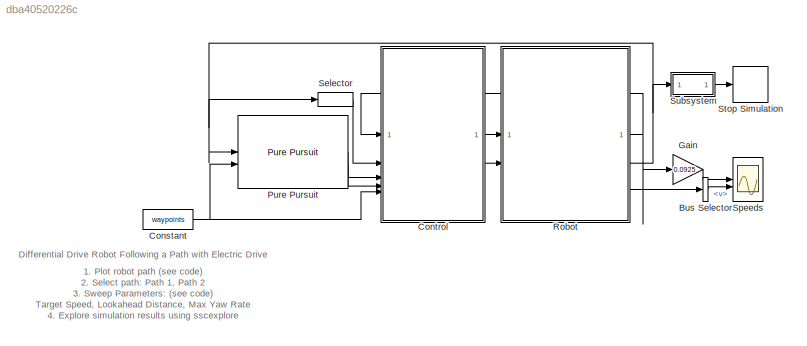
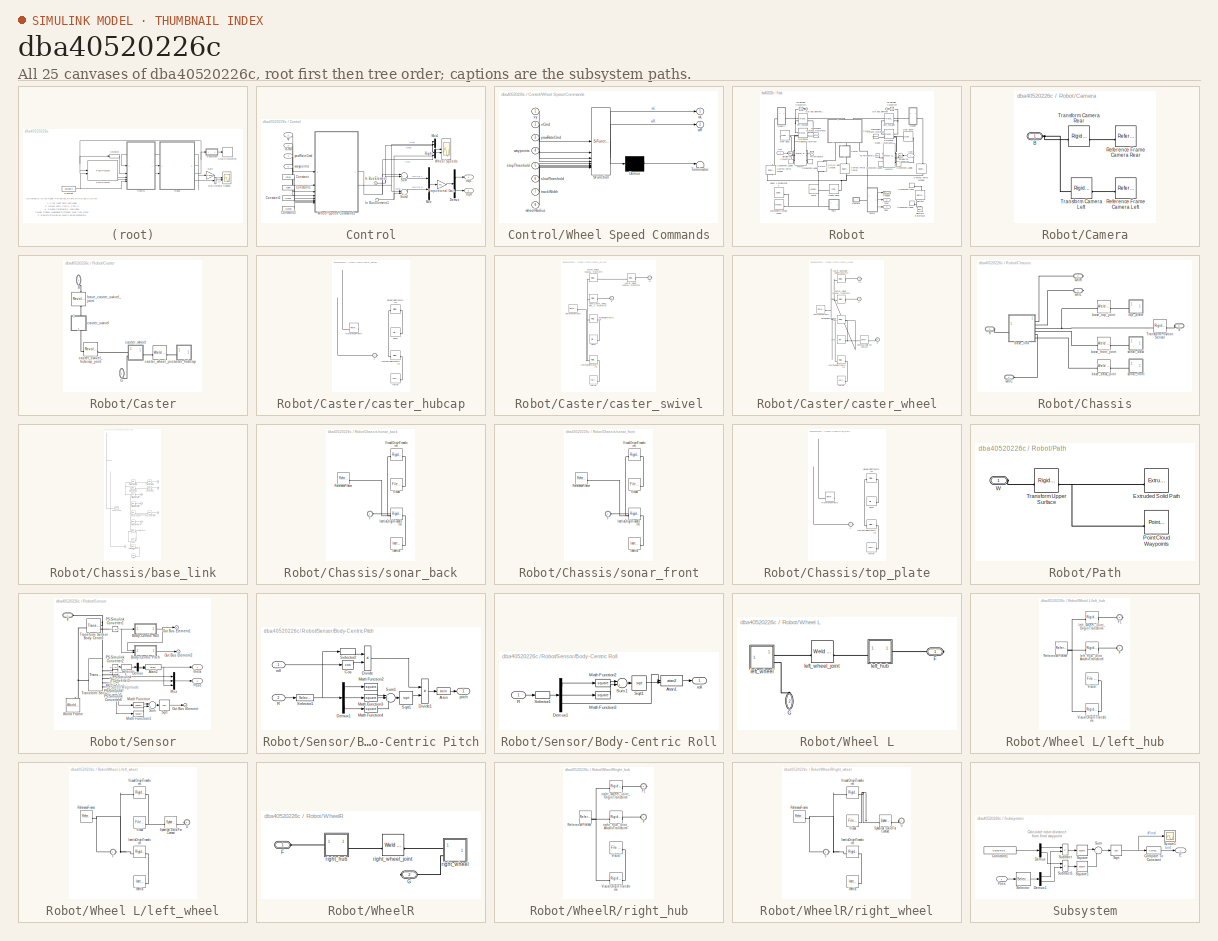
[diagram: thumbnail index - all 25 canvases of the model, root first then tree order]
MODEL slx_dba40520226c
KIND model
CONFIG AbsTol = 1e-4
CONFIG EnableMultiTasking = off
CONFIG FixedStep = auto
CONFIG MaxStep = auto
CONFIG MinStep = auto
CONFIG PostLoadFcn = waypoints = [0 0; 4 2; 3 7; -3 6]; \ntarget_vel = 0.5;\nlookahead_d = 2;\nmax_yaw_rate = 1;
CONFIG RelTol = 1e-3
CONFIG SampleTimeConstraint = Unconstrained
CONFIG SolverName = ode23t
CONFIG StartTime = 0.0
CONFIG StopFcn = %robotPoses = out.yout{1}.Values.Data;\n\n%figure(99);\n%plot(waypoints(:,1), waypoints(:,2), 'k-x');\n%hold all\n%plot(robotPoses(:,1), robotPoses(:,2));\n%title('XY Waypoint Tracking');\n
CONFIG StopTime = 35
BLOCK [BusSelector] Bus Selector
  OutputSignals = v
BLOCK [Constant] Constant
  Value = waypoints
BLOCK [SubSystem] Control
BLOCK [Constant] Control/Constant
  Value = xStop
BLOCK [Constant] Control/Constant1
  Value = xSlow
BLOCK [Constant] Control/Constant2
  Value = xTrack
BLOCK [Constant] Control/Constant3
  Value = rWheel
BLOCK [Demux] Control/Demux
  Outputs = 2
BLOCK [Inport] Control/In Bus Element
BLOCK [Inport] Control/In Bus Element1
BLOCK [Mux] Control/Mux
  DisplayOption = bar
  Inputs = 2
BLOCK [Mux] Control/Mux1
  DisplayOption = bar
  Inputs = 2
BLOCK [Gain] Control/Proportional Gain
  Gain = kp
BLOCK [Mux] Control/Right
  DisplayOption = bar
  Inputs = 2
BLOCK [Sum] Control/Sum
  Inputs = |+-
BLOCK [Sum] Control/Sum2
  Inputs = |+-
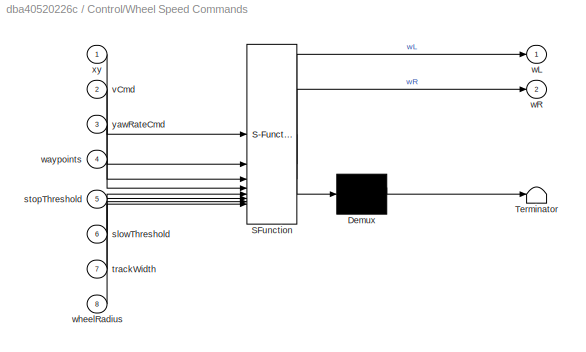
BLOCK [SubSystem] Control/Wheel Speed Commands
  ErrorFcn = Stateflow.Translate.translate
  PermitHierarchicalResolution = ExplicitOnly
  SFBlockType = MATLAB Function
  TreatAsAtomicUnit = on
BLOCK [Demux] Control/Wheel Speed Commands/ Demux 
  Outputs = 1
BLOCK [S-Function] Control/Wheel Speed Commands/ SFunction 
  EnableBusSupport = off
  FunctionName = sf_sfun
  PortCounts = [8 3]
  SFcnIsStateOwnerBlock = off
  SFunctionDeploymentMode = off
  Tag = Stateflow S-Function 2
BLOCK [Terminator] Control/Wheel Speed Commands/ Terminator 
BLOCK [Inport] Control/Wheel Speed Commands/slowThreshold
  Port = 6
BLOCK [Inport] Control/Wheel Speed Commands/stopThreshold
  Port = 5
BLOCK [Inport] Control/Wheel Speed Commands/trackWidth
  Port = 7
BLOCK [Inport] Control/Wheel Speed Commands/vCmd
  Port = 2
BLOCK [Outport] Control/Wheel Speed Commands/wL
BLOCK [Outport] Control/Wheel Speed Commands/wR
  Port = 2
BLOCK [Inport] Control/Wheel Speed Commands/waypoints
  Port = 4
BLOCK [Inport] Control/Wheel Speed Commands/wheelRadius
  Port = 8
BLOCK [Inport] Control/Wheel Speed Commands/xy
BLOCK [Inport] Control/Wheel Speed Commands/yawRateCmd
  Port = 3
BLOCK [Scope] Control/Wheel Speeds
  Floating = off
  NumInputPorts = 2
  ScopeSpecificationString = Simulink.scopes.TimeScopeBlockCfg('CurrentConfiguration', extmgr.ConfigurationSet(extmgr.Configuration('Core','General UI',true),extmgr.Configuration('Core','Source UI',true),extmgr.Configuration('Sources','WiredSimulink',true,'DataLoggingVariableName','ScopeData2'),extmgr.Configuration('Visuals','Time Domain',true,'SerializedDisplays',{struct('MinYLimReal','-0.70389','MaxYLimReal','6.33498','YLab...<+1963ch>
BLOCK [Outport] Control/trqL
BLOCK [Outport] Control/trqR
  Port = 2
BLOCK [Inport] Control/vCmd
  Port = 3
BLOCK [Inport] Control/waypoints
  Port = 5
BLOCK [Inport] Control/xy
  Port = 2
BLOCK [Inport] Control/yawRateCmd
  Port = 4
BLOCK [Gain] Gain
  Gain = 0.0925
  NameLocation = top
BLOCK [Reference] Pure Pursuit  REF=robotalgslib/Pure Pursuit
  SourceBlock = robotalgslib/Pure Pursuit
  SourceType = nav.slalgs.internal.PurePursuit
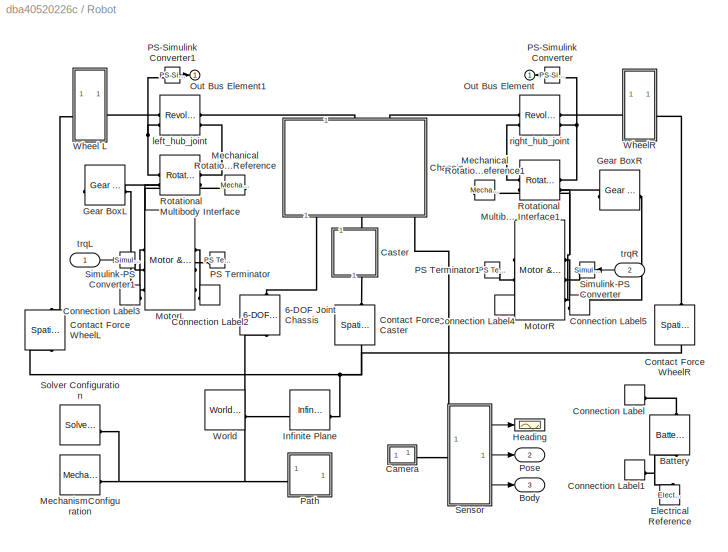
BLOCK [SubSystem] Robot
BLOCK [Reference] Robot/6-DOF Joint Chassis  REF=sm_lib/Joints/6-DOF Joint
  NameLocation = right
  SourceBlock = sm_lib/Joints/6-DOF Joint
  SourceType = 6-DOF Joint
BLOCK [Reference] Robot/Battery  REF=batteryecm_lib/Battery
  NameLocation = left
  SourceBlock = batteryecm_lib/Battery
  SourceType = Battery
BLOCK [Outport] Robot/Body
  Port = 3
BLOCK [SubSystem] Robot/Camera
BLOCK [PMIOPort] Robot/Camera/B
  Side = Left
BLOCK [Reference] Robot/Camera/Reference Frame Camera Left  REF=sm_lib/Frames and
Transforms/Reference
Frame
  SourceBlock = sm_lib/Frames and\nTransforms/Reference\nFrame
  SourceType = Reference\nFrame
BLOCK [Reference] Robot/Camera/Reference Frame Camera Rear  REF=sm_lib/Frames and
Transforms/Reference
Frame
  SourceBlock = sm_lib/Frames and\nTransforms/Reference\nFrame
  SourceType = Reference\nFrame
BLOCK [Reference] Robot/Camera/Transform Camera Left  REF=sm_lib/Frames and
Transforms/Rigid
Transform
  SourceBlock = sm_lib/Frames and\nTransforms/Rigid\nTransform
  SourceType = Rigid\nTransform
BLOCK [Reference] Robot/Camera/Transform Camera Rear  REF=sm_lib/Frames and
Transforms/Rigid
Transform
  SourceBlock = sm_lib/Frames and\nTransforms/Rigid\nTransform
  SourceType = Rigid\nTransform
BLOCK [SubSystem] Robot/Caster
  NameLocation = right
BLOCK [PMIOPort] Robot/Caster/B
  NameLocation = left
  Side = Left
BLOCK [PMIOPort] Robot/Caster/G
  NameLocation = right
  Port = 2
  Side = Right
BLOCK [Reference] Robot/Caster/base_caster_swivel_joint  REF=sm_lib/Joints/Revolute Joint
  NameLocation = right
  SourceBlock = sm_lib/Joints/Revolute Joint
  SourceType = Revolute Joint
BLOCK [SubSystem] Robot/Caster/caster_hubcap
  NameLocation = top
BLOCK [PMIOPort] Robot/Caster/caster_hubcap/F
  Side = Left
BLOCK [Reference] Robot/Caster/caster_hubcap/Inertia  REF=sm_lib/Body Elements/Inertia
  SourceBlock = sm_lib/Body Elements/Inertia
  SourceType = Inertia
BLOCK [Reference] Robot/Caster/caster_hubcap/InertiaOriginTransform  REF=sm_lib/Frames and
Transforms/Rigid
Transform
  SourceBlock = sm_lib/Frames and\nTransforms/Rigid\nTransform
  SourceType = Rigid\nTransform
BLOCK [Reference] Robot/Caster/caster_hubcap/ReferenceFrame  REF=sm_lib/Frames and
Transforms/Reference
Frame
  SourceBlock = sm_lib/Frames and\nTransforms/Reference\nFrame
  SourceType = Reference\nFrame
BLOCK [Reference] Robot/Caster/caster_hubcap/Visual  REF=sm_lib/Body Elements/File Solid
  SourceBlock = sm_lib/Body Elements/File Solid
  SourceType = File Solid
BLOCK [Reference] Robot/Caster/caster_hubcap/VisualOriginTransform  REF=sm_lib/Frames and
Transforms/Rigid
Transform
  SourceBlock = sm_lib/Frames and\nTransforms/Rigid\nTransform
  SourceType = Rigid\nTransform
BLOCK [SubSystem] Robot/Caster/caster_swivel
  NameLocation = right
BLOCK [PMIOPort] Robot/Caster/caster_swivel/F
  Side = Left
BLOCK [PMIOPort] Robot/Caster/caster_swivel/F1
  Port = 2
  Side = Right
BLOCK [Reference] Robot/Caster/caster_swivel/Inertia  REF=sm_lib/Body Elements/Inertia
  SourceBlock = sm_lib/Body Elements/Inertia
  SourceType = Inertia
BLOCK [Reference] Robot/Caster/caster_swivel/InertiaOriginTransform  REF=sm_lib/Frames and
Transforms/Rigid
Transform
  SourceBlock = sm_lib/Frames and\nTransforms/Rigid\nTransform
  SourceType = Rigid\nTransform
BLOCK [Reference] Robot/Caster/caster_swivel/ReferenceFrame  REF=sm_lib/Frames and
Transforms/Reference
Frame
  SourceBlock = sm_lib/Frames and\nTransforms/Reference\nFrame
  SourceType = Reference\nFrame
BLOCK [Reference] Robot/Caster/caster_swivel/Visual  REF=sm_lib/Body Elements/File Solid
  SourceBlock = sm_lib/Body Elements/File Solid
  SourceType = File Solid
BLOCK [Reference] Robot/Caster/caster_swivel/VisualOriginTransform  REF=sm_lib/Frames and
Transforms/Rigid
Transform
  SourceBlock = sm_lib/Frames and\nTransforms/Rigid\nTransform
  SourceType = Rigid\nTransform
BLOCK [Reference] Robot/Caster/caster_swivel/base_caster_swivel_joint_AxisInvTransform  REF=sm_lib/Frames and
Transforms/Rigid
Transform
  SourceBlock = sm_lib/Frames and\nTransforms/Rigid\nTransform
  SourceType = Rigid\nTransform
BLOCK [Reference] Robot/Caster/caster_swivel/caster_swivel_hubcap_joint_AxisTransform  REF=sm_lib/Frames and
Transforms/Rigid
Transform
  SourceBlock = sm_lib/Frames and\nTransforms/Rigid\nTransform
  SourceType = Rigid\nTransform
BLOCK [Reference] Robot/Caster/caster_swivel/caster_swivel_hubcap_joint_OriginTransform  REF=sm_lib/Frames and
Transforms/Rigid
Transform
  SourceBlock = sm_lib/Frames and\nTransforms/Rigid\nTransform
  SourceType = Rigid\nTransform
BLOCK [Reference] Robot/Caster/caster_swivel_hubcap_joint  REF=sm_lib/Joints/Revolute Joint
  SourceBlock = sm_lib/Joints/Revolute Joint
  SourceType = Revolute Joint
BLOCK [SubSystem] Robot/Caster/caster_wheel
  NameLocation = top
BLOCK [PMIOPort] Robot/Caster/caster_wheel/F
  Side = Left
BLOCK [PMIOPort] Robot/Caster/caster_wheel/F1
  Port = 2
  Side = Right
BLOCK [PMIOPort] Robot/Caster/caster_wheel/G
  Port = 3
  Side = Left
BLOCK [Reference] Robot/Caster/caster_wheel/Inertia  REF=sm_lib/Body Elements/Inertia
  SourceBlock = sm_lib/Body Elements/Inertia
  SourceType = Inertia
BLOCK [Reference] Robot/Caster/caster_wheel/InertiaOriginTransform  REF=sm_lib/Frames and
Transforms/Rigid
Transform
  SourceBlock = sm_lib/Frames and\nTransforms/Rigid\nTransform
  SourceType = Rigid\nTransform
BLOCK [Reference] Robot/Caster/caster_wheel/ReferenceFrame  REF=sm_lib/Frames and
Transforms/Reference
Frame
  SourceBlock = sm_lib/Frames and\nTransforms/Reference\nFrame
  SourceType = Reference\nFrame
BLOCK [Reference] Robot/Caster/caster_wheel/Spherical Solid For Contact  REF=sm_lib/Body Elements/Spherical Solid
  SourceBlock = sm_lib/Body Elements/Spherical Solid
  SourceType = Spherical Solid
BLOCK [Reference] Robot/Caster/caster_wheel/Visual  REF=sm_lib/Body Elements/File Solid
  SourceBlock = sm_lib/Body Elements/File Solid
  SourceType = File Solid
BLOCK [Reference] Robot/Caster/caster_wheel/VisualOriginTransform  REF=sm_lib/Frames and
Transforms/Rigid
Transform
  SourceBlock = sm_lib/Frames and\nTransforms/Rigid\nTransform
  SourceType = Rigid\nTransform
BLOCK [Reference] Robot/Caster/caster_wheel/caster_swivel_hubcap_joint_AxisInvTransform  REF=sm_lib/Frames and
Transforms/Rigid
Transform
  SourceBlock = sm_lib/Frames and\nTransforms/Rigid\nTransform
  SourceType = Rigid\nTransform
BLOCK [Reference] Robot/Caster/caster_wheel/caster_wheel_joint_OriginTransform  REF=sm_lib/Frames and
Transforms/Rigid
Transform
  SourceBlock = sm_lib/Frames and\nTransforms/Rigid\nTransform
  SourceType = Rigid\nTransform
BLOCK [Reference] Robot/Caster/caster_wheel_joint  REF=sm_lib/Joints/Weld Joint
  SourceBlock = sm_lib/Joints/Weld Joint
  SourceType = Weld Joint
BLOCK [SubSystem] Robot/Chassis
  NameLocation = right
BLOCK [PMIOPort] Robot/Chassis/R
  Port = 3
  Side = Left
BLOCK [PMIOPort] Robot/Chassis/S
  Port = 5
  Side = Left
BLOCK [Reference] Robot/Chassis/Transform Position Sensor  REF=sm_lib/Frames and
Transforms/Rigid
Transform
  SourceBlock = sm_lib/Frames and\nTransforms/Rigid\nTransform
  SourceType = Rigid\nTransform
BLOCK [Reference] Robot/Chassis/base_back_joint  REF=sm_lib/Joints/Weld Joint
  SourceBlock = sm_lib/Joints/Weld Joint
  SourceType = Weld Joint
BLOCK [Reference] Robot/Chassis/base_front_joint  REF=sm_lib/Joints/Weld Joint
  SourceBlock = sm_lib/Joints/Weld Joint
  SourceType = Weld Joint
BLOCK [SubSystem] Robot/Chassis/base_link
BLOCK [PMIOPort] Robot/Chassis/base_link/F
  Side = Left
BLOCK [PMIOPort] Robot/Chassis/base_link/F1
  Port = 7
  Side = Right
BLOCK [PMIOPort] Robot/Chassis/base_link/F2
  Port = 6
  Side = Right
BLOCK [PMIOPort] Robot/Chassis/base_link/F3
  Port = 5
  Side = Right
BLOCK [PMIOPort] Robot/Chassis/base_link/F4
  Port = 4
  Side = Right
BLOCK [PMIOPort] Robot/Chassis/base_link/F5
  Port = 3
  Side = Right
BLOCK [PMIOPort] Robot/Chassis/base_link/F6
  Port = 2
  Side = Right
BLOCK [Reference] Robot/Chassis/base_link/Inertia  REF=sm_lib/Body Elements/Inertia
  SourceBlock = sm_lib/Body Elements/Inertia
  SourceType = Inertia
BLOCK [Reference] Robot/Chassis/base_link/InertiaOriginTransform  REF=sm_lib/Frames and
Transforms/Rigid
Transform
  SourceBlock = sm_lib/Frames and\nTransforms/Rigid\nTransform
  SourceType = Rigid\nTransform
BLOCK [Reference] Robot/Chassis/base_link/ReferenceFrame  REF=sm_lib/Frames and
Transforms/Reference
Frame
  SourceBlock = sm_lib/Frames and\nTransforms/Reference\nFrame
  SourceType = Reference\nFrame
BLOCK [Reference] Robot/Chassis/base_link/Visual  REF=sm_lib/Body Elements/File Solid
  SourceBlock = sm_lib/Body Elements/File Solid
  SourceType = File Solid
BLOCK [Reference] Robot/Chassis/base_link/VisualOriginTransform  REF=sm_lib/Frames and
Transforms/Rigid
Transform
  SourceBlock = sm_lib/Frames and\nTransforms/Rigid\nTransform
  SourceType = Rigid\nTransform
BLOCK [Reference] Robot/Chassis/base_link/base_back_joint_OriginTransform  REF=sm_lib/Frames and
Transforms/Rigid
Transform
  SourceBlock = sm_lib/Frames and\nTransforms/Rigid\nTransform
  SourceType = Rigid\nTransform
BLOCK [Reference] Robot/Chassis/base_link/base_caster_swivel_joint_AxisTransform  REF=sm_lib/Frames and
Transforms/Rigid
Transform
  SourceBlock = sm_lib/Frames and\nTransforms/Rigid\nTransform
  SourceType = Rigid\nTransform
BLOCK [Reference] Robot/Chassis/base_link/base_caster_swivel_joint_OriginTransform  REF=sm_lib/Frames and
Transforms/Rigid
Transform
  SourceBlock = sm_lib/Frames and\nTransforms/Rigid\nTransform
  SourceType = Rigid\nTransform
BLOCK [Reference] Robot/Chassis/base_link/base_front_joint_OriginTransform  REF=sm_lib/Frames and
Transforms/Rigid
Transform
  SourceBlock = sm_lib/Frames and\nTransforms/Rigid\nTransform
  SourceType = Rigid\nTransform
BLOCK [Reference] Robot/Chassis/base_link/base_top_joint_OriginTransform  REF=sm_lib/Frames and
Transforms/Rigid
Transform
  SourceBlock = sm_lib/Frames and\nTransforms/Rigid\nTransform
  SourceType = Rigid\nTransform
BLOCK [Reference] Robot/Chassis/base_link/left_hub_joint_AxisTransform  REF=sm_lib/Frames and
Transforms/Rigid
Transform
  SourceBlock = sm_lib/Frames and\nTransforms/Rigid\nTransform
  SourceType = Rigid\nTransform
BLOCK [Reference] Robot/Chassis/base_link/left_hub_joint_OriginTransform  REF=sm_lib/Frames and
Transforms/Rigid
Transform
  SourceBlock = sm_lib/Frames and\nTransforms/Rigid\nTransform
  SourceType = Rigid\nTransform
BLOCK [Reference] Robot/Chassis/base_link/right_hub_joint_AxisTransform  REF=sm_lib/Frames and
Transforms/Rigid
Transform
  SourceBlock = sm_lib/Frames and\nTransforms/Rigid\nTransform
  SourceType = Rigid\nTransform
BLOCK [Reference] Robot/Chassis/base_link/right_hub_joint_OriginTransform  REF=sm_lib/Frames and
Transforms/Rigid
Transform
  SourceBlock = sm_lib/Frames and\nTransforms/Rigid\nTransform
  SourceType = Rigid\nTransform
BLOCK [Reference] Robot/Chassis/base_top_joint  REF=sm_lib/Joints/Weld Joint
  SourceBlock = sm_lib/Joints/Weld Joint
  SourceType = Weld Joint
BLOCK [SubSystem] Robot/Chassis/sonar_back
BLOCK [PMIOPort] Robot/Chassis/sonar_back/F
  Side = Left
BLOCK [Reference] Robot/Chassis/sonar_back/Inertia  REF=sm_lib/Body Elements/Inertia
  SourceBlock = sm_lib/Body Elements/Inertia
  SourceType = Inertia
BLOCK [Reference] Robot/Chassis/sonar_back/InertiaOriginTransform  REF=sm_lib/Frames and
Transforms/Rigid
Transform
  SourceBlock = sm_lib/Frames and\nTransforms/Rigid\nTransform
  SourceType = Rigid\nTransform
BLOCK [Reference] Robot/Chassis/sonar_back/ReferenceFrame  REF=sm_lib/Frames and
Transforms/Reference
Frame
  SourceBlock = sm_lib/Frames and\nTransforms/Reference\nFrame
  SourceType = Reference\nFrame
BLOCK [Reference] Robot/Chassis/sonar_back/Visual  REF=sm_lib/Body Elements/File Solid
  SourceBlock = sm_lib/Body Elements/File Solid
  SourceType = File Solid
BLOCK [Reference] Robot/Chassis/sonar_back/VisualOriginTransform  REF=sm_lib/Frames and
Transforms/Rigid
Transform
  SourceBlock = sm_lib/Frames and\nTransforms/Rigid\nTransform
  SourceType = Rigid\nTransform
BLOCK [SubSystem] Robot/Chassis/sonar_front
BLOCK [PMIOPort] Robot/Chassis/sonar_front/F
  Side = Left
BLOCK [Reference] Robot/Chassis/sonar_front/Inertia  REF=sm_lib/Body Elements/Inertia
  SourceBlock = sm_lib/Body Elements/Inertia
  SourceType = Inertia
BLOCK [Reference] Robot/Chassis/sonar_front/InertiaOriginTransform  REF=sm_lib/Frames and
Transforms/Rigid
Transform
  SourceBlock = sm_lib/Frames and\nTransforms/Rigid\nTransform
  SourceType = Rigid\nTransform
BLOCK [Reference] Robot/Chassis/sonar_front/ReferenceFrame  REF=sm_lib/Frames and
Transforms/Reference
Frame
  SourceBlock = sm_lib/Frames and\nTransforms/Reference\nFrame
  SourceType = Reference\nFrame
BLOCK [Reference] Robot/Chassis/sonar_front/Visual  REF=sm_lib/Body Elements/File Solid
  SourceBlock = sm_lib/Body Elements/File Solid
  SourceType = File Solid
BLOCK [Reference] Robot/Chassis/sonar_front/VisualOriginTransform  REF=sm_lib/Frames and
Transforms/Rigid
Transform
  SourceBlock = sm_lib/Frames and\nTransforms/Rigid\nTransform
  SourceType = Rigid\nTransform
BLOCK [SubSystem] Robot/Chassis/top_plate
BLOCK [PMIOPort] Robot/Chassis/top_plate/F
  Side = Left
BLOCK [Reference] Robot/Chassis/top_plate/Inertia  REF=sm_lib/Body Elements/Inertia
  SourceBlock = sm_lib/Body Elements/Inertia
  SourceType = Inertia
BLOCK [Reference] Robot/Chassis/top_plate/InertiaOriginTransform  REF=sm_lib/Frames and
Transforms/Rigid
Transform
  SourceBlock = sm_lib/Frames and\nTransforms/Rigid\nTransform
  SourceType = Rigid\nTransform
BLOCK [Reference] Robot/Chassis/top_plate/ReferenceFrame  REF=sm_lib/Frames and
Transforms/Reference
Frame
  SourceBlock = sm_lib/Frames and\nTransforms/Reference\nFrame
  SourceType = Reference\nFrame
BLOCK [Reference] Robot/Chassis/top_plate/Visual  REF=sm_lib/Body Elements/File Solid
  SourceBlock = sm_lib/Body Elements/File Solid
  SourceType = File Solid
BLOCK [Reference] Robot/Chassis/top_plate/VisualOriginTransform  REF=sm_lib/Frames and
Transforms/Rigid
Transform
  SourceBlock = sm_lib/Frames and\nTransforms/Rigid\nTransform
  SourceType = Rigid\nTransform
BLOCK [PMIOPort] Robot/Chassis/whlC
  Port = 4
  Side = Left
BLOCK [PMIOPort] Robot/Chassis/whlL
  Side = Right
BLOCK [PMIOPort] Robot/Chassis/whlR
  Port = 2
  Side = Right
BLOCK [ConnectionLabel] Robot/Connection Label
  Label = p
BLOCK [ConnectionLabel] Robot/Connection Label1
  Label = n
BLOCK [ConnectionLabel] Robot/Connection Label2
  Label = n
  NameLocation = top
BLOCK [ConnectionLabel] Robot/Connection Label3
  Label = p
  NameLocation = top
BLOCK [ConnectionLabel] Robot/Connection Label4
  Label = n
BLOCK [ConnectionLabel] Robot/Connection Label5
  Label = p
BLOCK [Reference] Robot/Contact Force Caster  REF=sm_lib/Forces and
Torques/Spatial
Contact Force
  NameLocation = right
  SourceBlock = sm_lib/Forces and\nTorques/Spatial\nContact Force
  SourceType = Spatial\nContact Force
BLOCK [Reference] Robot/Contact Force WheelL  REF=sm_lib/Forces and
Torques/Spatial
Contact Force
  NameLocation = right
  SourceBlock = sm_lib/Forces and\nTorques/Spatial\nContact Force
  SourceType = Spatial\nContact Force
BLOCK [Reference] Robot/Contact Force WheelR  REF=sm_lib/Forces and
Torques/Spatial
Contact Force
  NameLocation = left
  SourceBlock = sm_lib/Forces and\nTorques/Spatial\nContact Force
  SourceType = Spatial\nContact Force
BLOCK [Reference] Robot/Electrical Reference  REF=fl_lib/Electrical/Electrical Elements/Electrical Reference
  NameLocation = left
  SourceBlock = fl_lib/Electrical/Electrical Elements/Electrical Reference
  SourceType = Electrical Reference
BLOCK [Reference] Robot/Gear BoxL  REF=fl_lib/Mechanical/Mechanisms/Gear Box
  SourceBlock = fl_lib/Mechanical/Mechanisms/Gear Box
  SourceType = Gear Box
BLOCK [Reference] Robot/Gear BoxR  REF=fl_lib/Mechanical/Mechanisms/Gear Box
  SourceBlock = fl_lib/Mechanical/Mechanisms/Gear Box
  SourceType = Gear Box
BLOCK [Scope] Robot/Heading
  Floating = off
  NumInputPorts = 1
  ScopeSpecificationString = Simulink.scopes.TimeScopeBlockCfg('CurrentConfiguration', extmgr.ConfigurationSet(extmgr.Configuration('Core','General UI',true),extmgr.Configuration('Core','Source UI',true),extmgr.Configuration('Sources','WiredSimulink',true,'DataLoggingVariableName','ScopeData1'),extmgr.Configuration('Visuals','Time Domain',true,'SerializedDisplays',{struct('MinYLimReal','-3.92553','MaxYLimReal','3.92324','YLab...<+1388ch>
BLOCK [Reference] Robot/Infinite Plane  REF=sm_lib/Curves and Surfaces/Infinite Plane
  SourceBlock = sm_lib/Curves and Surfaces/Infinite Plane
  SourceType = Infinite Plane
BLOCK [Reference] Robot/Mechanical Rotational Reference  REF=fl_lib/Mechanical/Rotational Elements/Mechanical
Rotational Reference
  NameLocation = top
  SourceBlock = fl_lib/Mechanical/Rotational Elements/Mechanical\nRotational Reference
  SourceType = Mechanical\nRotational Reference
BLOCK [Reference] Robot/Mechanical Rotational Reference1  REF=fl_lib/Mechanical/Rotational Elements/Mechanical
Rotational Reference
  NameLocation = top
  SourceBlock = fl_lib/Mechanical/Rotational Elements/Mechanical\nRotational Reference
  SourceType = Mechanical\nRotational Reference
BLOCK [Reference] Robot/MechanismConfiguration  REF=sm_lib/Utilities/Mechanism
Configuration
  SourceBlock = sm_lib/Utilities/Mechanism\nConfiguration
  SourceType = Mechanism\nConfiguration
BLOCK [Reference] Robot/MotorL  REF=ee_lib/Electromechanical/Motor & Drive
(System Level)
  SourceBlock = ee_lib/Electromechanical/Motor & Drive\n(System Level)
  SourceType = Motor & Drive\n(System Level)
BLOCK [Reference] Robot/MotorR  REF=ee_lib/Electromechanical/Motor & Drive
(System Level)
  SourceBlock = ee_lib/Electromechanical/Motor & Drive\n(System Level)
  SourceType = Motor & Drive\n(System Level)
BLOCK [Outport] Robot/Out Bus Element
  NameLocation = top
BLOCK [Outport] Robot/Out Bus Element1
  NameLocation = top
BLOCK [Reference] Robot/PS Terminator  REF=fl_lib/Physical Signals/Sinks/PS Terminator
  SourceBlock = fl_lib/Physical Signals/Sinks/PS Terminator
  SourceType = PS Terminator
BLOCK [Reference] Robot/PS Terminator1  REF=fl_lib/Physical Signals/Sinks/PS Terminator
  SourceBlock = fl_lib/Physical Signals/Sinks/PS Terminator
  SourceType = PS Terminator
BLOCK [Reference] Robot/PS-Simulink Converter  REF=nesl_utility/PS-Simulink
Converter
  NameLocation = top
  SourceBlock = nesl_utility/PS-Simulink\nConverter
  SourceType = PS-Simulink\nConverter
BLOCK [Reference] Robot/PS-Simulink Converter1  REF=nesl_utility/PS-Simulink
Converter
  NameLocation = top
  SourceBlock = nesl_utility/PS-Simulink\nConverter
  SourceType = PS-Simulink\nConverter
BLOCK [SubSystem] Robot/Path
BLOCK [Reference] Robot/Path/Extruded Solid Path  REF=sm_lib/Body Elements/Extruded Solid
  SourceBlock = sm_lib/Body Elements/Extruded Solid
  SourceType = Extruded Solid
BLOCK [Reference] Robot/Path/Point Cloud Waypoints  REF=sm_lib/Curves and Surfaces/Point Cloud
  SourceBlock = sm_lib/Curves and Surfaces/Point Cloud
  SourceType = Point Cloud
BLOCK [Reference] Robot/Path/Transform Upper Surface  REF=sm_lib/Frames and
Transforms/Rigid
Transform
  SourceBlock = sm_lib/Frames and\nTransforms/Rigid\nTransform
  SourceType = Rigid\nTransform
BLOCK [PMIOPort] Robot/Path/W
  Side = Left
BLOCK [Outport] Robot/Pose
  Port = 2
BLOCK [Reference] Robot/Rotational Multibody Interface  REF=fl_lib/Mechanical/Multibody Interfaces/Rotational Multibody
Interface
  SourceBlock = fl_lib/Mechanical/Multibody Interfaces/Rotational Multibody\nInterface
  SourceType = Rotational Multibody\nInterface
BLOCK [Reference] Robot/Rotational Multibody Interface1  REF=fl_lib/Mechanical/Multibody Interfaces/Rotational Multibody
Interface
  SourceBlock = fl_lib/Mechanical/Multibody Interfaces/Rotational Multibody\nInterface
  SourceType = Rotational Multibody\nInterface
BLOCK [SubSystem] Robot/Sensor
BLOCK [Trigonometry] Robot/Sensor/Atan2
  NameLocation = top
  Operator = atan2
BLOCK [SubSystem] Robot/Sensor/Body-Centric Pitch
BLOCK [Trigonometry] Robot/Sensor/Body-Centric Pitch/Asin
  Operator = asin
BLOCK [Trigonometry] Robot/Sensor/Body-Centric Pitch/Cos
  Operator = cos
BLOCK [Demux] Robot/Sensor/Body-Centric Pitch/Demux1
  Outputs = 3
BLOCK [Product] Robot/Sensor/Body-Centric Pitch/Divide
  Inputs = */
BLOCK [Product] Robot/Sensor/Body-Centric Pitch/Divide1
  Inputs = */
BLOCK [Math] Robot/Sensor/Body-Centric Pitch/Math Function2
  Operator = square
BLOCK [Math] Robot/Sensor/Body-Centric Pitch/Math Function3
  Operator = square
BLOCK [Math] Robot/Sensor/Body-Centric Pitch/Math Function4
  Operator = square
BLOCK [Inport] Robot/Sensor/Body-Centric Pitch/R
  Port = 2
BLOCK [Selector] Robot/Sensor/Body-Centric Pitch/Selector1
  IndexOptions = Index vector (dialog),Index vector (dialog)
  Indices = [1 2 3],1
  InputPortWidth = 3
  NumberOfDimensions = 2
  OutputSizes = 1,1
BLOCK [Selector] Robot/Sensor/Body-Centric Pitch/Selector2
  IndexOptions = Index vector (dialog)
  Indices = 3
  InputPortWidth = 3
  OutputSizes = 1
BLOCK [Sqrt] Robot/Sensor/Body-Centric Pitch/Sqrt1
BLOCK [Sum] Robot/Sensor/Body-Centric Pitch/Sum1
  Inputs = +++
BLOCK [Outport] Robot/Sensor/Body-Centric Pitch/pitch
BLOCK [Inport] Robot/Sensor/Body-Centric Pitch/roll
BLOCK [SubSystem] Robot/Sensor/Body-Centric Roll
BLOCK [Trigonometry] Robot/Sensor/Body-Centric Roll/Atan1
  Operator = atan2
BLOCK [Demux] Robot/Sensor/Body-Centric Roll/Demux1
  Outputs = 3
BLOCK [Math] Robot/Sensor/Body-Centric Roll/Math Function2
  Operator = square
BLOCK [Math] Robot/Sensor/Body-Centric Roll/Math Function3
  Operator = square
BLOCK [Inport] Robot/Sensor/Body-Centric Roll/R
BLOCK [Selector] Robot/Sensor/Body-Centric Roll/Selector1
  IndexOptions = Index vector (dialog),Index vector (dialog)
  Indices = [1 2 3],2
  InputPortWidth = 3
  NameLocation = top
  NumberOfDimensions = 2
  OutputSizes = 1,1
BLOCK [Sqrt] Robot/Sensor/Body-Centric Roll/Sqrt1
BLOCK [Sum] Robot/Sensor/Body-Centric Roll/Sum1
  Inputs = |++
BLOCK [Outport] Robot/Sensor/Body-Centric Roll/roll
BLOCK [Demux] Robot/Sensor/Demux
  NameLocation = right
  Outputs = 2
BLOCK [PMIOPort] Robot/Sensor/F
  Side = Left
BLOCK [Math] Robot/Sensor/Math Function
  Operator = square
BLOCK [Math] Robot/Sensor/Math Function1
  Operator = square
BLOCK [Mux] Robot/Sensor/Mux
  DisplayOption = bar
  Inputs = 3
BLOCK [Outport] Robot/Sensor/Out Bus Element
  Port = 3
BLOCK [Outport] Robot/Sensor/Out Bus Element1
  Port = 3
BLOCK [Outport] Robot/Sensor/Out Bus Element2
  Port = 3
BLOCK [Reference] Robot/Sensor/PS-Simulink Converter1  REF=nesl_utility/PS-Simulink
Converter
  SourceBlock = nesl_utility/PS-Simulink\nConverter
  SourceType = PS-Simulink\nConverter
BLOCK [Reference] Robot/Sensor/PS-Simulink Converter2  REF=nesl_utility/PS-Simulink
Converter
  SourceBlock = nesl_utility/PS-Simulink\nConverter
  SourceType = PS-Simulink\nConverter
BLOCK [Reference] Robot/Sensor/PS-Simulink Converter3  REF=nesl_utility/PS-Simulink
Converter
  SourceBlock = nesl_utility/PS-Simulink\nConverter
  SourceType = PS-Simulink\nConverter
BLOCK [Reference] Robot/Sensor/PS-Simulink Converter4  REF=nesl_utility/PS-Simulink
Converter
  SourceBlock = nesl_utility/PS-Simulink\nConverter
  SourceType = PS-Simulink\nConverter
BLOCK [Reference] Robot/Sensor/PS-Simulink Converter5  REF=nesl_utility/PS-Simulink
Converter
  SourceBlock = nesl_utility/PS-Simulink\nConverter
  SourceType = PS-Simulink\nConverter
BLOCK [Reference] Robot/Sensor/PS-Simulink Converter6  REF=nesl_utility/PS-Simulink
Converter
  SourceBlock = nesl_utility/PS-Simulink\nConverter
  SourceType = PS-Simulink\nConverter
BLOCK [Outport] Robot/Sensor/Pose
  Port = 2
BLOCK [Selector] Robot/Sensor/Selector
  IndexOptions = Index vector (dialog),Index vector (dialog)
  Indices = [2,1],1
  InputPortWidth = 3
  NameLocation = top
  NumberOfDimensions = 2
  OutputSizes = 1,1
BLOCK [Sqrt] Robot/Sensor/Sqrt
BLOCK [Sum] Robot/Sensor/Sum
  Inputs = |++
BLOCK [Reference] Robot/Sensor/Transform Sensor  REF=sm_lib/Frames and
Transforms/Transform
Sensor
  SourceBlock = sm_lib/Frames and\nTransforms/Transform\nSensor
  SourceType = Transform\nSensor
BLOCK [Reference] Robot/Sensor/Transform Sensor Body Centric  REF=sm_lib/Frames and
Transforms/Transform
Sensor
  SourceBlock = sm_lib/Frames and\nTransforms/Transform\nSensor
  SourceType = Transform\nSensor
BLOCK [Reference] Robot/Sensor/World Frame  REF=sm_lib/Frames and
Transforms/World Frame
  NameLocation = right
  SourceBlock = sm_lib/Frames and\nTransforms/World Frame
  SourceType = World Frame
BLOCK [Outport] Robot/Sensor/theta
BLOCK [Reference] Robot/Simulink-PS Converter  REF=nesl_utility/Simulink-PS
Converter
  SourceBlock = nesl_utility/Simulink-PS\nConverter
  SourceType = Simulink-PS\nConverter
BLOCK [Reference] Robot/Simulink-PS Converter1  REF=nesl_utility/Simulink-PS
Converter
  SourceBlock = nesl_utility/Simulink-PS\nConverter
  SourceType = Simulink-PS\nConverter
BLOCK [Reference] Robot/Solver Configuration  REF=nesl_utility/Solver
Configuration
  SourceBlock = nesl_utility/Solver\nConfiguration
  SourceType = Solver\nConfiguration
BLOCK [SubSystem] Robot/Wheel L
BLOCK [PMIOPort] Robot/Wheel L/F
  Side = Right
BLOCK [PMIOPort] Robot/Wheel L/G
  NameLocation = right
  Port = 2
  Side = Left
BLOCK [SubSystem] Robot/Wheel L/left_hub
BLOCK [PMIOPort] Robot/Wheel L/left_hub/F
  Side = Left
BLOCK [PMIOPort] Robot/Wheel L/left_hub/F1
  Port = 2
  Side = Right
BLOCK [Reference] Robot/Wheel L/left_hub/ReferenceFrame  REF=sm_lib/Frames and
Transforms/Reference
Frame
  SourceBlock = sm_lib/Frames and\nTransforms/Reference\nFrame
  SourceType = Reference\nFrame
BLOCK [Reference] Robot/Wheel L/left_hub/Visual  REF=sm_lib/Body Elements/File Solid
  SourceBlock = sm_lib/Body Elements/File Solid
  SourceType = File Solid
BLOCK [Reference] Robot/Wheel L/left_hub/VisualOriginTransform  REF=sm_lib/Frames and
Transforms/Rigid
Transform
  SourceBlock = sm_lib/Frames and\nTransforms/Rigid\nTransform
  SourceType = Rigid\nTransform
BLOCK [Reference] Robot/Wheel L/left_hub/left_hub_joint_AxisInvTransform  REF=sm_lib/Frames and
Transforms/Rigid
Transform
  SourceBlock = sm_lib/Frames and\nTransforms/Rigid\nTransform
  SourceType = Rigid\nTransform
BLOCK [Reference] Robot/Wheel L/left_hub/left_wheel_joint_OriginTransform  REF=sm_lib/Frames and
Transforms/Rigid
Transform
  SourceBlock = sm_lib/Frames and\nTransforms/Rigid\nTransform
  SourceType = Rigid\nTransform
BLOCK [SubSystem] Robot/Wheel L/left_wheel
BLOCK [PMIOPort] Robot/Wheel L/left_wheel/F
  Side = Left
BLOCK [PMIOPort] Robot/Wheel L/left_wheel/G
  Port = 2
  Side = Left
BLOCK [Reference] Robot/Wheel L/left_wheel/Inertia  REF=sm_lib/Body Elements/Inertia
  SourceBlock = sm_lib/Body Elements/Inertia
  SourceType = Inertia
BLOCK [Reference] Robot/Wheel L/left_wheel/InertiaOriginTransform  REF=sm_lib/Frames and
Transforms/Rigid
Transform
  SourceBlock = sm_lib/Frames and\nTransforms/Rigid\nTransform
  SourceType = Rigid\nTransform
BLOCK [Reference] Robot/Wheel L/left_wheel/ReferenceFrame  REF=sm_lib/Frames and
Transforms/Reference
Frame
  SourceBlock = sm_lib/Frames and\nTransforms/Reference\nFrame
  SourceType = Reference\nFrame
BLOCK [Reference] Robot/Wheel L/left_wheel/Spherical Solid For Contact  REF=sm_lib/Body Elements/Spherical Solid
  SourceBlock = sm_lib/Body Elements/Spherical Solid
  SourceType = Spherical Solid
BLOCK [Reference] Robot/Wheel L/left_wheel/Visual  REF=sm_lib/Body Elements/File Solid
  SourceBlock = sm_lib/Body Elements/File Solid
  SourceType = File Solid
BLOCK [Reference] Robot/Wheel L/left_wheel/VisualOriginTransform  REF=sm_lib/Frames and
Transforms/Rigid
Transform
  SourceBlock = sm_lib/Frames and\nTransforms/Rigid\nTransform
  SourceType = Rigid\nTransform
BLOCK [Reference] Robot/Wheel L/left_wheel_joint  REF=sm_lib/Joints/Weld Joint
  SourceBlock = sm_lib/Joints/Weld Joint
  SourceType = Weld Joint
BLOCK [SubSystem] Robot/WheelR
BLOCK [PMIOPort] Robot/WheelR/F
  Side = Left
BLOCK [PMIOPort] Robot/WheelR/G
  Port = 2
  Side = Right
BLOCK [SubSystem] Robot/WheelR/right_hub
BLOCK [PMIOPort] Robot/WheelR/right_hub/F
  Side = Left
BLOCK [PMIOPort] Robot/WheelR/right_hub/F1
  Port = 2
  Side = Right
BLOCK [Reference] Robot/WheelR/right_hub/ReferenceFrame  REF=sm_lib/Frames and
Transforms/Reference
Frame
  SourceBlock = sm_lib/Frames and\nTransforms/Reference\nFrame
  SourceType = Reference\nFrame
BLOCK [Reference] Robot/WheelR/right_hub/Visual  REF=sm_lib/Body Elements/File Solid
  SourceBlock = sm_lib/Body Elements/File Solid
  SourceType = File Solid
BLOCK [Reference] Robot/WheelR/right_hub/VisualOriginTransform  REF=sm_lib/Frames and
Transforms/Rigid
Transform
  SourceBlock = sm_lib/Frames and\nTransforms/Rigid\nTransform
  SourceType = Rigid\nTransform
BLOCK [Reference] Robot/WheelR/right_hub/right_hub_joint_AxisInvTransform  REF=sm_lib/Frames and
Transforms/Rigid
Transform
  SourceBlock = sm_lib/Frames and\nTransforms/Rigid\nTransform
  SourceType = Rigid\nTransform
BLOCK [Reference] Robot/WheelR/right_hub/right_wheel_joint_OriginTransform  REF=sm_lib/Frames and
Transforms/Rigid
Transform
  SourceBlock = sm_lib/Frames and\nTransforms/Rigid\nTransform
  SourceType = Rigid\nTransform
BLOCK [SubSystem] Robot/WheelR/right_wheel
BLOCK [PMIOPort] Robot/WheelR/right_wheel/F
  Side = Left
BLOCK [PMIOPort] Robot/WheelR/right_wheel/G
  Port = 2
  Side = Left
BLOCK [Reference] Robot/WheelR/right_wheel/Inertia  REF=sm_lib/Body Elements/Inertia
  SourceBlock = sm_lib/Body Elements/Inertia
  SourceType = Inertia
BLOCK [Reference] Robot/WheelR/right_wheel/InertiaOriginTransform  REF=sm_lib/Frames and
Transforms/Rigid
Transform
  SourceBlock = sm_lib/Frames and\nTransforms/Rigid\nTransform
  SourceType = Rigid\nTransform
BLOCK [Reference] Robot/WheelR/right_wheel/ReferenceFrame  REF=sm_lib/Frames and
Transforms/Reference
Frame
  SourceBlock = sm_lib/Frames and\nTransforms/Reference\nFrame
  SourceType = Reference\nFrame
BLOCK [Reference] Robot/WheelR/right_wheel/Spherical Solid For Contact  REF=sm_lib/Body Elements/Spherical Solid
  SourceBlock = sm_lib/Body Elements/Spherical Solid
  SourceType = Spherical Solid
BLOCK [Reference] Robot/WheelR/right_wheel/Visual  REF=sm_lib/Body Elements/File Solid
  SourceBlock = sm_lib/Body Elements/File Solid
  SourceType = File Solid
BLOCK [Reference] Robot/WheelR/right_wheel/VisualOriginTransform  REF=sm_lib/Frames and
Transforms/Rigid
Transform
  SourceBlock = sm_lib/Frames and\nTransforms/Rigid\nTransform
  SourceType = Rigid\nTransform
BLOCK [Reference] Robot/WheelR/right_wheel_joint  REF=sm_lib/Joints/Weld Joint
  SourceBlock = sm_lib/Joints/Weld Joint
  SourceType = Weld Joint
BLOCK [Reference] Robot/World  REF=sm_lib/Frames and
Transforms/World Frame
  SourceBlock = sm_lib/Frames and\nTransforms/World Frame
  SourceType = World Frame
BLOCK [Reference] Robot/left_hub_joint  REF=sm_lib/Joints/Revolute Joint
  SourceBlock = sm_lib/Joints/Revolute Joint
  SourceType = Revolute Joint
BLOCK [Reference] Robot/right_hub_joint  REF=sm_lib/Joints/Revolute Joint
  SourceBlock = sm_lib/Joints/Revolute Joint
  SourceType = Revolute Joint
BLOCK [Inport] Robot/trqL
BLOCK [Inport] Robot/trqR
  Port = 2
BLOCK [Selector] Selector
  IndexOptions = Index vector (dialog)
  Indices = [1 2]
  InputPortWidth = 3
  NameLocation = top
  OutputSizes = 1
BLOCK [Scope] Speeds
  Floating = off
  NumInputPorts = 2
  ScopeSpecificationString = Simulink.scopes.TimeScopeBlockCfg('CurrentConfiguration', extmgr.ConfigurationSet(extmgr.Configuration('Core','General UI',true),extmgr.Configuration('Core','Source UI',true),extmgr.Configuration('Sources','WiredSimulink',true),extmgr.Configuration('Visuals','Time Domain',true,'SerializedDisplays',{struct('MinYLimReal','-0.11386','MaxYLimReal','1.02475','YLabelReal','','MinYLimMag','0.00000','MaxY...<+1397ch>
BLOCK [Stop] Stop Simulation
BLOCK [SubSystem] Subsystem
BLOCK [Reference] Subsystem/Compare To Constant  REF=simulink/Logic and Bit
Operations/Compare
To Constant
  SourceBlock = simulink/Logic and Bit\nOperations/Compare\nTo Constant
  SourceType = Compare To Constant
BLOCK [Constant] Subsystem/Constant1
  Value = waypoints(end,:)
BLOCK [Demux] Subsystem/Demux
  Outputs = 2
BLOCK [Demux] Subsystem/Demux1
  Outputs = 2
BLOCK [Outport] Subsystem/E
BLOCK [Inport] Subsystem/Pose
BLOCK [Scope] Subsystem/Scope1
  Floating = off
  NumInputPorts = 1
  ScopeSpecificationString = Simulink.scopes.TimeScopeBlockCfg('CurrentConfiguration', extmgr.ConfigurationSet(extmgr.Configuration('Core','General UI',true),extmgr.Configuration('Core','Source UI',true),extmgr.Configuration('Sources','WiredSimulink',true,'DataLoggingVariableName','ScopeData2'),extmgr.Configuration('Visuals','Time Domain',true,'SerializedDisplays',{struct('MinYLimReal','-0.84679','MaxYLimReal','8.62109','YLab...<+1392ch>
BLOCK [Selector] Subsystem/Selector
  IndexOptions = Index vector (dialog)
  Indices = [1 2]
  InputPortWidth = 3
  OutputSizes = 1
BLOCK [Sqrt] Subsystem/Sqrt
BLOCK [Math] Subsystem/Square
  Operator = square
BLOCK [Math] Subsystem/Square1
  Operator = square
BLOCK [Sum] Subsystem/Subtract
  IconShape = rectangular
  Inputs = +-
BLOCK [Sum] Subsystem/Subtract1
  IconShape = rectangular
  Inputs = +-
BLOCK [Sum] Subsystem/Sum
  Inputs = |++
ANNOTATION (root): 1. Plot robot path ( see code ) 2. Select path: Path 1 , Path 2 3. Sweep Parameters: ( see code ) Target Speed , Lookahead Distance , Max Yaw Rate 4. Explore simulation results using sscexplore
ANNOTATION (root): Differential Drive Robot Following a Path with Electric Drive
ANNOTATION Robot/Sensor: Speed Magnitude
ANNOTATION Subsystem: Calculate robot distance from final waypoint
LINE Bus Selector:1 -> Speeds:2
NET Constant:1 -> Control:5, Pure Pursuit:2
LINE Control/Constant1:1 -> Control/Wheel Speed Commands:6
LINE Control/Constant2:1 -> Control/Wheel Speed Commands:7
LINE Control/Constant3:1 -> Control/Wheel Speed Commands:8
LINE Control/Constant:1 -> Control/Wheel Speed Commands:5
LINE Control/Demux:1 -> Control/trqL:1
LINE Control/Demux:2 -> Control/trqR:1
NET Control/In Bus Element1:1 -> Control/Right:2, Control/Sum2:2
NET Control/In Bus Element:1 -> Control/Mux1:2, Control/Sum:2
LINE Control/Mux1:1 -> Control/Wheel Speeds:1
LINE Control/Mux:1 -> Control/Proportional Gain:1
LINE Control/Proportional Gain:1 -> Control/Demux:1
LINE Control/Right:1 -> Control/Wheel Speeds:2
LINE Control/Sum2:1 -> Control/Mux:2
LINE Control/Sum:1 -> Control/Mux:1
NET Control/Wheel Speed Commands:1 -> Control/Mux1:1, Control/Sum:1
NET Control/Wheel Speed Commands:2 -> Control/Right:1, Control/Sum2:1
LINE Control/vCmd:1 -> Control/Wheel Speed Commands:2
LINE Control/waypoints:1 -> Control/Wheel Speed Commands:4
LINE Control/xy:1 -> Control/Wheel Speed Commands:1
LINE Control/yawRateCmd:1 -> Control/Wheel Speed Commands:3
LINE Control:1 -> Robot:1
LINE Control:2 -> Robot:2
LINE Gain:1 -> Speeds:1
LINE Pure Pursuit:1 -> Control:3
LINE Pure Pursuit:2 -> Control:4
LINE Robot/PS-Simulink Converter1:1 -> Robot/Out Bus Element1:1
LINE Robot/PS-Simulink Converter:1 -> Robot/Out Bus Element:1
NET Robot/Sensor/Atan2:1 -> Robot/Sensor/Mux:3, Robot/Sensor/theta:1
LINE Robot/Sensor/Body-Centric Pitch/Asin:1 -> Robot/Sensor/Body-Centric Pitch/pitch:1
LINE Robot/Sensor/Body-Centric Pitch/Cos:1 -> Robot/Sensor/Body-Centric Pitch/Divide:2
LINE Robot/Sensor/Body-Centric Pitch/Demux1:1 -> Robot/Sensor/Body-Centric Pitch/Math Function2:1
LINE Robot/Sensor/Body-Centric Pitch/Demux1:2 -> Robot/Sensor/Body-Centric Pitch/Math Function3:1
LINE Robot/Sensor/Body-Centric Pitch/Demux1:3 -> Robot/Sensor/Body-Centric Pitch/Math Function4:1
LINE Robot/Sensor/Body-Centric Pitch/Divide1:1 -> Robot/Sensor/Body-Centric Pitch/Asin:1
LINE Robot/Sensor/Body-Centric Pitch/Divide:1 -> Robot/Sensor/Body-Centric Pitch/Divide1:1
LINE Robot/Sensor/Body-Centric Pitch/Math Function2:1 -> Robot/Sensor/Body-Centric Pitch/Sum1:1
LINE Robot/Sensor/Body-Centric Pitch/Math Function3:1 -> Robot/Sensor/Body-Centric Pitch/Sum1:2
LINE Robot/Sensor/Body-Centric Pitch/Math Function4:1 -> Robot/Sensor/Body-Centric Pitch/Sum1:3
LINE Robot/Sensor/Body-Centric Pitch/R:1 -> Robot/Sensor/Body-Centric Pitch/Selector1:1
NET Robot/Sensor/Body-Centric Pitch/Selector1:1 -> Robot/Sensor/Body-Centric Pitch/Demux1:1, Robot/Sensor/Body-Centric Pitch/Selector2:1
LINE Robot/Sensor/Body-Centric Pitch/Selector2:1 -> Robot/Sensor/Body-Centric Pitch/Divide:1
LINE Robot/Sensor/Body-Centric Pitch/Sqrt1:1 -> Robot/Sensor/Body-Centric Pitch/Divide1:2
LINE Robot/Sensor/Body-Centric Pitch/Sum1:1 -> Robot/Sensor/Body-Centric Pitch/Sqrt1:1
LINE Robot/Sensor/Body-Centric Pitch/roll:1 -> Robot/Sensor/Body-Centric Pitch/Cos:1
LINE Robot/Sensor/Body-Centric Pitch:1 -> Robot/Sensor/Out Bus Element2:1
LINE Robot/Sensor/Body-Centric Roll/Atan1:1 -> Robot/Sensor/Body-Centric Roll/roll:1
LINE Robot/Sensor/Body-Centric Roll/Demux1:1 -> Robot/Sensor/Body-Centric Roll/Math Function2:1
LINE Robot/Sensor/Body-Centric Roll/Demux1:2 -> Robot/Sensor/Body-Centric Roll/Math Function3:1
LINE Robot/Sensor/Body-Centric Roll/Demux1:3 -> Robot/Sensor/Body-Centric Roll/Atan1:1
LINE Robot/Sensor/Body-Centric Roll/Math Function2:1 -> Robot/Sensor/Body-Centric Roll/Sum1:1
LINE Robot/Sensor/Body-Centric Roll/Math Function3:1 -> Robot/Sensor/Body-Centric Roll/Sum1:2
LINE Robot/Sensor/Body-Centric Roll/R:1 -> Robot/Sensor/Body-Centric Roll/Selector1:1
LINE Robot/Sensor/Body-Centric Roll/Selector1:1 -> Robot/Sensor/Body-Centric Roll/Demux1:1
LINE Robot/Sensor/Body-Centric Roll/Sqrt1:1 -> Robot/Sensor/Body-Centric Roll/Atan1:2
LINE Robot/Sensor/Body-Centric Roll/Sum1:1 -> Robot/Sensor/Body-Centric Roll/Sqrt1:1
NET Robot/Sensor/Body-Centric Roll:1 -> Robot/Sensor/Body-Centric Pitch:1, Robot/Sensor/Out Bus Element1:1
LINE Robot/Sensor/Demux:1 -> Robot/Sensor/Atan2:1
LINE Robot/Sensor/Demux:2 -> Robot/Sensor/Atan2:2
LINE Robot/Sensor/Math Function1:1 -> Robot/Sensor/Sum:2
LINE Robot/Sensor/Math Function:1 -> Robot/Sensor/Sum:1
LINE Robot/Sensor/Mux:1 -> Robot/Sensor/Pose:1
NET Robot/Sensor/PS-Simulink Converter1:1 -> Robot/Sensor/Body-Centric Pitch:2, Robot/Sensor/Body-Centric Roll:1
LINE Robot/Sensor/PS-Simulink Converter2:1 -> Robot/Sensor/Selector:1
LINE Robot/Sensor/PS-Simulink Converter3:1 -> Robot/Sensor/Mux:1
LINE Robot/Sensor/PS-Simulink Converter4:1 -> Robot/Sensor/Mux:2
LINE Robot/Sensor/PS-Simulink Converter5:1 -> Robot/Sensor/Math Function:1
LINE Robot/Sensor/PS-Simulink Converter6:1 -> Robot/Sensor/Math Function1:1
LINE Robot/Sensor/Selector:1 -> Robot/Sensor/Demux:1
LINE Robot/Sensor/Sqrt:1 -> Robot/Sensor/Out Bus Element:1
LINE Robot/Sensor/Sum:1 -> Robot/Sensor/Sqrt:1
LINE Robot/Sensor:1 -> Robot/Heading:1
LINE Robot/Sensor:2 -> Robot/Pose:1
LINE Robot/Sensor:3 -> Robot/Body:1
LINE Robot/trqL:1 -> Robot/Simulink-PS Converter1:1
LINE Robot/trqR:1 -> Robot/Simulink-PS Converter:1
NET Robot:1 -> Control:1, Gain:1
NET Robot:2 -> Pure Pursuit:1, Selector:1, Subsystem:1
LINE Robot:3 -> Bus Selector:1
LINE Selector:1 -> Control:2
LINE Subsystem/Compare To Constant:1 -> Subsystem/E:1
LINE Subsystem/Constant1:1 -> Subsystem/Demux:1
LINE Subsystem/Demux1:1 -> Subsystem/Subtract:2
LINE Subsystem/Demux1:2 -> Subsystem/Subtract1:2
LINE Subsystem/Demux:1 -> Subsystem/Subtract:1
LINE Subsystem/Demux:2 -> Subsystem/Subtract1:1
LINE Subsystem/Pose:1 -> Subsystem/Selector:1
LINE Subsystem/Selector:1 -> Subsystem/Demux1:1
NET Subsystem/Sqrt:1 -> Subsystem/Compare To Constant:1, Subsystem/Scope1:1
LINE Subsystem/Square1:1 -> Subsystem/Sum:2
LINE Subsystem/Square:1 -> Subsystem/Sum:1
LINE Subsystem/Subtract1:1 -> Subsystem/Square1:1
LINE Subsystem/Subtract:1 -> Subsystem/Square:1
LINE Subsystem/Sum:1 -> Subsystem/Sqrt:1
LINE Subsystem:1 -> Stop Simulation:1
PNET net1: Robot/6-DOF Joint Chassis:LConn1 -- Robot/Infinite Plane:LConn1 -- Robot/MechanismConfiguration:RConn1 -- Robot/Path:LConn1 -- Robot/Solver Configuration:RConn1 -- Robot/World:RConn1
PLINE Robot/6-DOF Joint Chassis:RConn1 -- Robot/Chassis:LConn1
PLINE Robot/Battery:LConn1 -- Robot/Connection Label:LConn1
PNET net2: Robot/Battery:RConn1 -- Robot/Connection Label1:LConn1 -- Robot/Electrical Reference:LConn1
PNET net3: Robot/Camera/B:RConn1 -- Robot/Camera/Transform Camera Left:LConn1 -- Robot/Camera/Transform Camera Rear:LConn1
PLINE Robot/Camera/Reference Frame Camera Left:RConn1 -- Robot/Camera/Transform Camera Left:RConn1
PLINE Robot/Camera/Reference Frame Camera Rear:RConn1 -- Robot/Camera/Transform Camera Rear:RConn1
PNET net4: Robot/Camera:LConn1 -- Robot/Chassis:LConn3 -- Robot/Sensor:LConn1
PLINE Robot/Caster/B:RConn1 -- Robot/Caster/base_caster_swivel_joint:LConn1
PLINE Robot/Caster/G:RConn1 -- Robot/Caster/caster_wheel:LConn2
PLINE Robot/Caster/base_caster_swivel_joint:RConn1 -- Robot/Caster/caster_swivel:LConn1
PNET net5: Robot/Caster/caster_hubcap/F:RConn1 -- Robot/Caster/caster_hubcap/InertiaOriginTransform:LConn1 -- Robot/Caster/caster_hubcap/ReferenceFrame:RConn1 -- Robot/Caster/caster_hubcap/VisualOriginTransform:LConn1
PLINE Robot/Caster/caster_hubcap/Inertia:RConn1 -- Robot/Caster/caster_hubcap/InertiaOriginTransform:RConn1
PLINE Robot/Caster/caster_hubcap/Visual:RConn1 -- Robot/Caster/caster_hubcap/VisualOriginTransform:RConn1
PLINE Robot/Caster/caster_hubcap:LConn1 -- Robot/Caster/caster_wheel_joint:RConn1
PLINE Robot/Caster/caster_swivel/F1:RConn1 -- Robot/Caster/caster_swivel/caster_swivel_hubcap_joint_AxisTransform:RConn1
PLINE Robot/Caster/caster_swivel/F:RConn1 -- Robot/Caster/caster_swivel/base_caster_swivel_joint_AxisInvTransform:RConn1
PLINE Robot/Caster/caster_swivel/Inertia:RConn1 -- Robot/Caster/caster_swivel/InertiaOriginTransform:RConn1
PNET net6: Robot/Caster/caster_swivel/InertiaOriginTransform:LConn1 -- Robot/Caster/caster_swivel/ReferenceFrame:RConn1 -- Robot/Caster/caster_swivel/VisualOriginTransform:LConn1 -- Robot/Caster/caster_swivel/base_caster_swivel_joint_AxisInvTransform:LConn1 -- Robot/Caster/caster_swivel/caster_swivel_hubcap_joint_OriginTransform:LConn1
PLINE Robot/Caster/caster_swivel/Visual:RConn1 -- Robot/Caster/caster_swivel/VisualOriginTransform:RConn1
PLINE Robot/Caster/caster_swivel/caster_swivel_hubcap_joint_AxisTransform:LConn1 -- Robot/Caster/caster_swivel/caster_swivel_hubcap_joint_OriginTransform:RConn1
PLINE Robot/Caster/caster_swivel:RConn1 -- Robot/Caster/caster_swivel_hubcap_joint:LConn1
PLINE Robot/Caster/caster_swivel_hubcap_joint:RConn1 -- Robot/Caster/caster_wheel:LConn1
PLINE Robot/Caster/caster_wheel/F1:RConn1 -- Robot/Caster/caster_wheel/caster_wheel_joint_OriginTransform:RConn1
PLINE Robot/Caster/caster_wheel/F:RConn1 -- Robot/Caster/caster_wheel/caster_swivel_hubcap_joint_AxisInvTransform:RConn1
PLINE Robot/Caster/caster_wheel/G:RConn1 -- Robot/Caster/caster_wheel/Spherical Solid For Contact:LConn1
PLINE Robot/Caster/caster_wheel/Inertia:RConn1 -- Robot/Caster/caster_wheel/InertiaOriginTransform:RConn1
PNET net7: Robot/Caster/caster_wheel/InertiaOriginTransform:LConn1 -- Robot/Caster/caster_wheel/ReferenceFrame:RConn1 -- Robot/Caster/caster_wheel/VisualOriginTransform:LConn1 -- Robot/Caster/caster_wheel/caster_swivel_hubcap_joint_AxisInvTransform:LConn1 -- Robot/Caster/caster_wheel/caster_wheel_joint_OriginTransform:LConn1
PNET net8: Robot/Caster/caster_wheel/Spherical Solid For Contact:RConn1 -- Robot/Caster/caster_wheel/Visual:RConn1 -- Robot/Caster/caster_wheel/VisualOriginTransform:RConn1
PLINE Robot/Caster/caster_wheel:RConn1 -- Robot/Caster/caster_wheel_joint:LConn1
PLINE Robot/Caster:LConn1 -- Robot/Chassis:LConn2
PLINE Robot/Caster:RConn1 -- Robot/Contact Force Caster:RConn1
PLINE Robot/Chassis/R:RConn1 -- Robot/Chassis/base_link:LConn1
PLINE Robot/Chassis/S:RConn1 -- Robot/Chassis/Transform Position Sensor:RConn1
PNET net9: Robot/Chassis/Transform Position Sensor:LConn1 -- Robot/Chassis/base_link:RConn3 -- Robot/Chassis/base_top_joint:LConn1
PLINE Robot/Chassis/base_back_joint:LConn1 -- Robot/Chassis/base_link:RConn6
PLINE Robot/Chassis/base_back_joint:RConn1 -- Robot/Chassis/sonar_front:LConn1
PLINE Robot/Chassis/base_front_joint:LConn1 -- Robot/Chassis/base_link:RConn4
PLINE Robot/Chassis/base_front_joint:RConn1 -- Robot/Chassis/sonar_back:LConn1
PLINE Robot/Chassis/base_link/F1:RConn1 -- Robot/Chassis/base_link/base_back_joint_OriginTransform:RConn1
PLINE Robot/Chassis/base_link/F2:RConn1 -- Robot/Chassis/base_link/base_caster_swivel_joint_AxisTransform:RConn1
PLINE Robot/Chassis/base_link/F3:RConn1 -- Robot/Chassis/base_link/base_front_joint_OriginTransform:RConn1
PLINE Robot/Chassis/base_link/F4:RConn1 -- Robot/Chassis/base_link/base_top_joint_OriginTransform:RConn1
PLINE Robot/Chassis/base_link/F5:RConn1 -- Robot/Chassis/base_link/left_hub_joint_AxisTransform:RConn1
PLINE Robot/Chassis/base_link/F6:RConn1 -- Robot/Chassis/base_link/right_hub_joint_AxisTransform:RConn1
PNET net10: Robot/Chassis/base_link/F:RConn1 -- Robot/Chassis/base_link/InertiaOriginTransform:LConn1 -- Robot/Chassis/base_link/ReferenceFrame:RConn1 -- Robot/Chassis/base_link/VisualOriginTransform:LConn1 -- Robot/Chassis/base_link/base_back_joint_OriginTransform:LConn1 -- Robot/Chassis/base_link/base_caster_swivel_joint_OriginTransform:LConn1 -- Robot/Chassis/base_link/base_front_joint_OriginTransform:LConn1 -- Robot/Chassis/base_link/base_top_joint_OriginTransform:LConn1 -- Robot/Chassis/base_link/left_hub_joint_OriginTransform:LConn1 -- Robot/Chassis/base_link/right_hub_joint_OriginTransform:LConn1
PLINE Robot/Chassis/base_link/Inertia:RConn1 -- Robot/Chassis/base_link/InertiaOriginTransform:RConn1
PLINE Robot/Chassis/base_link/Visual:RConn1 -- Robot/Chassis/base_link/VisualOriginTransform:RConn1
PLINE Robot/Chassis/base_link/base_caster_swivel_joint_AxisTransform:LConn1 -- Robot/Chassis/base_link/base_caster_swivel_joint_OriginTransform:RConn1
PLINE Robot/Chassis/base_link/left_hub_joint_AxisTransform:LConn1 -- Robot/Chassis/base_link/left_hub_joint_OriginTransform:RConn1
PLINE Robot/Chassis/base_link/right_hub_joint_AxisTransform:LConn1 -- Robot/Chassis/base_link/right_hub_joint_OriginTransform:RConn1
PLINE Robot/Chassis/base_link:RConn1 -- Robot/Chassis/whlR:RConn1
PLINE Robot/Chassis/base_link:RConn2 -- Robot/Chassis/whlL:RConn1
PLINE Robot/Chassis/base_link:RConn5 -- Robot/Chassis/whlC:RConn1
PLINE Robot/Chassis/base_top_joint:RConn1 -- Robot/Chassis/top_plate:LConn1
PNET net11: Robot/Chassis/sonar_back/F:RConn1 -- Robot/Chassis/sonar_back/InertiaOriginTransform:LConn1 -- Robot/Chassis/sonar_back/ReferenceFrame:RConn1 -- Robot/Chassis/sonar_back/VisualOriginTransform:LConn1
PLINE Robot/Chassis/sonar_back/Inertia:RConn1 -- Robot/Chassis/sonar_back/InertiaOriginTransform:RConn1
PLINE Robot/Chassis/sonar_back/Visual:RConn1 -- Robot/Chassis/sonar_back/VisualOriginTransform:RConn1
PNET net12: Robot/Chassis/sonar_front/F:RConn1 -- Robot/Chassis/sonar_front/InertiaOriginTransform:LConn1 -- Robot/Chassis/sonar_front/ReferenceFrame:RConn1 -- Robot/Chassis/sonar_front/VisualOriginTransform:LConn1
PLINE Robot/Chassis/sonar_front/Inertia:RConn1 -- Robot/Chassis/sonar_front/InertiaOriginTransform:RConn1
PLINE Robot/Chassis/sonar_front/Visual:RConn1 -- Robot/Chassis/sonar_front/VisualOriginTransform:RConn1
PNET net13: Robot/Chassis/top_plate/F:RConn1 -- Robot/Chassis/top_plate/InertiaOriginTransform:LConn1 -- Robot/Chassis/top_plate/ReferenceFrame:RConn1 -- Robot/Chassis/top_plate/VisualOriginTransform:LConn1
PLINE Robot/Chassis/top_plate/Inertia:RConn1 -- Robot/Chassis/top_plate/InertiaOriginTransform:RConn1
PLINE Robot/Chassis/top_plate/Visual:RConn1 -- Robot/Chassis/top_plate/VisualOriginTransform:RConn1
PLINE Robot/Chassis:RConn1 -- Robot/left_hub_joint:LConn1
PLINE Robot/Chassis:RConn2 -- Robot/right_hub_joint:LConn1
PLINE Robot/Connection Label2:LConn1 -- Robot/MotorL:RConn1
PLINE Robot/Connection Label3:LConn1 -- Robot/MotorL:LConn1
PLINE Robot/Connection Label4:LConn1 -- Robot/MotorR:RConn1
PLINE Robot/Connection Label5:LConn1 -- Robot/MotorR:LConn1
PNET net14: Robot/Contact Force Caster:LConn1 -- Robot/Contact Force WheelL:LConn1 -- Robot/Contact Force WheelR:LConn1 -- Robot/Infinite Plane:RConn1
PLINE Robot/Contact Force WheelL:RConn1 -- Robot/Wheel L:LConn1
PLINE Robot/Contact Force WheelR:RConn1 -- Robot/WheelR:RConn1
PLINE Robot/Gear BoxL:LConn1 -- Robot/MotorL:LConn3
PLINE Robot/Gear BoxL:RConn1 -- Robot/Rotational Multibody Interface:RConn2
PLINE Robot/Gear BoxR:LConn1 -- Robot/MotorR:LConn3
PLINE Robot/Gear BoxR:RConn1 -- Robot/Rotational Multibody Interface1:RConn2
PNET net15: Robot/Mechanical Rotational Reference1:LConn1 -- Robot/MotorR:RConn3 -- Robot/Rotational Multibody Interface1:LConn2
PNET net16: Robot/Mechanical Rotational Reference:LConn1 -- Robot/MotorL:RConn3 -- Robot/Rotational Multibody Interface:LConn2
PLINE Robot/MotorL:LConn2 -- Robot/Simulink-PS Converter1:RConn1
PLINE Robot/MotorL:RConn2 -- Robot/PS Terminator:LConn1
PLINE Robot/MotorR:LConn2 -- Robot/Simulink-PS Converter:RConn1
PLINE Robot/MotorR:RConn2 -- Robot/PS Terminator1:LConn1
PNET net17: Robot/PS-Simulink Converter1:LConn1 -- Robot/Rotational Multibody Interface:RConn1 -- Robot/left_hub_joint:RConn2
PNET net18: Robot/PS-Simulink Converter:LConn1 -- Robot/Rotational Multibody Interface1:RConn1 -- Robot/right_hub_joint:RConn2
PNET net19: Robot/Path/Extruded Solid Path:RConn1 -- Robot/Path/Point Cloud Waypoints:LConn1 -- Robot/Path/Transform Upper Surface:RConn1
PLINE Robot/Path/Transform Upper Surface:LConn1 -- Robot/Path/W:RConn1
PLINE Robot/Rotational Multibody Interface1:LConn1 -- Robot/right_hub_joint:LConn2
PLINE Robot/Rotational Multibody Interface:LConn1 -- Robot/left_hub_joint:LConn2
PNET net20: Robot/Sensor/F:RConn1 -- Robot/Sensor/Transform Sensor Body Centric:RConn1 -- Robot/Sensor/Transform Sensor:RConn1
PLINE Robot/Sensor/PS-Simulink Converter1:LConn1 -- Robot/Sensor/Transform Sensor Body Centric:RConn2
PLINE Robot/Sensor/PS-Simulink Converter2:LConn1 -- Robot/Sensor/Transform Sensor:RConn2
PLINE Robot/Sensor/PS-Simulink Converter3:LConn1 -- Robot/Sensor/Transform Sensor:RConn3
PLINE Robot/Sensor/PS-Simulink Converter4:LConn1 -- Robot/Sensor/Transform Sensor:RConn4
PLINE Robot/Sensor/PS-Simulink Converter5:LConn1 -- Robot/Sensor/Transform Sensor:RConn5
PLINE Robot/Sensor/PS-Simulink Converter6:LConn1 -- Robot/Sensor/Transform Sensor:RConn6
PNET net21: Robot/Sensor/Transform Sensor Body Centric:LConn1 -- Robot/Sensor/Transform Sensor:LConn1 -- Robot/Sensor/World Frame:RConn1
PLINE Robot/Wheel L/F:RConn1 -- Robot/Wheel L/left_hub:LConn1
PLINE Robot/Wheel L/G:RConn1 -- Robot/Wheel L/left_wheel:LConn2
PLINE Robot/Wheel L/left_hub/F1:RConn1 -- Robot/Wheel L/left_hub/left_wheel_joint_OriginTransform:RConn1
PLINE Robot/Wheel L/left_hub/F:RConn1 -- Robot/Wheel L/left_hub/left_hub_joint_AxisInvTransform:RConn1
PNET net22: Robot/Wheel L/left_hub/ReferenceFrame:RConn1 -- Robot/Wheel L/left_hub/VisualOriginTransform:LConn1 -- Robot/Wheel L/left_hub/left_hub_joint_AxisInvTransform:LConn1 -- Robot/Wheel L/left_hub/left_wheel_joint_OriginTransform:LConn1
PLINE Robot/Wheel L/left_hub/Visual:RConn1 -- Robot/Wheel L/left_hub/VisualOriginTransform:RConn1
PLINE Robot/Wheel L/left_hub:RConn1 -- Robot/Wheel L/left_wheel_joint:LConn1
PNET net23: Robot/Wheel L/left_wheel/F:RConn1 -- Robot/Wheel L/left_wheel/InertiaOriginTransform:LConn1 -- Robot/Wheel L/left_wheel/ReferenceFrame:RConn1 -- Robot/Wheel L/left_wheel/VisualOriginTransform:LConn1
PLINE Robot/Wheel L/left_wheel/G:RConn1 -- Robot/Wheel L/left_wheel/Spherical Solid For Contact:LConn1
PLINE Robot/Wheel L/left_wheel/Inertia:RConn1 -- Robot/Wheel L/left_wheel/InertiaOriginTransform:RConn1
PNET net24: Robot/Wheel L/left_wheel/Spherical Solid For Contact:RConn1 -- Robot/Wheel L/left_wheel/Visual:RConn1 -- Robot/Wheel L/left_wheel/VisualOriginTransform:RConn1
PLINE Robot/Wheel L/left_wheel:LConn1 -- Robot/Wheel L/left_wheel_joint:RConn1
PLINE Robot/Wheel L:RConn1 -- Robot/left_hub_joint:RConn1
PLINE Robot/WheelR/F:RConn1 -- Robot/WheelR/right_hub:LConn1
PLINE Robot/WheelR/G:RConn1 -- Robot/WheelR/right_wheel:LConn2
PLINE Robot/WheelR/right_hub/F1:RConn1 -- Robot/WheelR/right_hub/right_wheel_joint_OriginTransform:RConn1
PLINE Robot/WheelR/right_hub/F:RConn1 -- Robot/WheelR/right_hub/right_hub_joint_AxisInvTransform:RConn1
PNET net25: Robot/WheelR/right_hub/ReferenceFrame:RConn1 -- Robot/WheelR/right_hub/VisualOriginTransform:LConn1 -- Robot/WheelR/right_hub/right_hub_joint_AxisInvTransform:LConn1 -- Robot/WheelR/right_hub/right_wheel_joint_OriginTransform:LConn1
PLINE Robot/WheelR/right_hub/Visual:RConn1 -- Robot/WheelR/right_hub/VisualOriginTransform:RConn1
PLINE Robot/WheelR/right_hub:RConn1 -- Robot/WheelR/right_wheel_joint:LConn1
PNET net26: Robot/WheelR/right_wheel/F:RConn1 -- Robot/WheelR/right_wheel/InertiaOriginTransform:LConn1 -- Robot/WheelR/right_wheel/ReferenceFrame:RConn1 -- Robot/WheelR/right_wheel/VisualOriginTransform:LConn1
PLINE Robot/WheelR/right_wheel/G:RConn1 -- Robot/WheelR/right_wheel/Spherical Solid For Contact:LConn1
PLINE Robot/WheelR/right_wheel/Inertia:RConn1 -- Robot/WheelR/right_wheel/InertiaOriginTransform:RConn1
PNET net27: Robot/WheelR/right_wheel/Spherical Solid For Contact:RConn1 -- Robot/WheelR/right_wheel/Visual:RConn1 -- Robot/WheelR/right_wheel/VisualOriginTransform:RConn1
PLINE Robot/WheelR/right_wheel:LConn1 -- Robot/WheelR/right_wheel_joint:RConn1
PLINE Robot/WheelR:LConn1 -- Robot/right_hub_joint:RConn1
note: NET lines group one-source signal fan-out (src -> all destinations, sorted); 1:1 wires keep LINE; PNET lines group multi-terminal physical nets as a canonical sorted terminal list (undirected conserving connections); 2-terminal nets keep the pairwise PLINE form
CHART Control/Wheel Speed Commands states=1 transitions=1
  STATE_LABEL 'eML_blk_kernel()'
  STATE_LABEL "SCRIPT:\nfunction [wL, wR] = wheelSpeed(xy, vCmd, yawRateCmd, waypoints, stopThreshold, slowThreshold,trackWidth,wheelRadius)\n\n% Slow the robot down when it's near the threshold\ndistanceToEndpoint = norm(waypoints(end, :) - xy');\nif (distanceToEndpoint < slowThreshold)\n    vCmd = distanceToEndpoint/slowThreshold*vCmd;\n    \n    % Stop the robot if it's inside the target threshold\n    if distanceToEn...<+225ch>"
CHART  states=0 transitions=0
